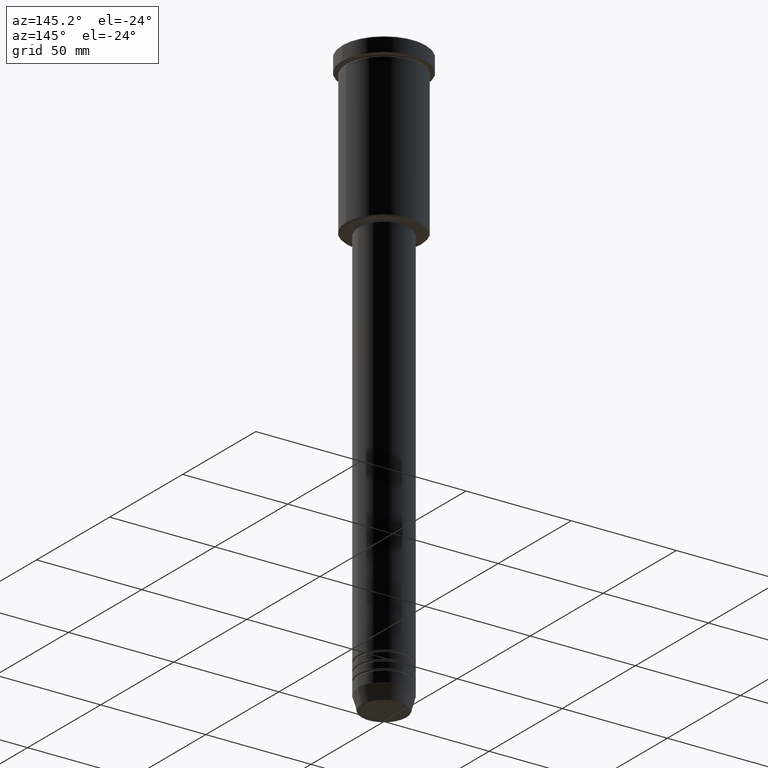
[diagram: clean part render]
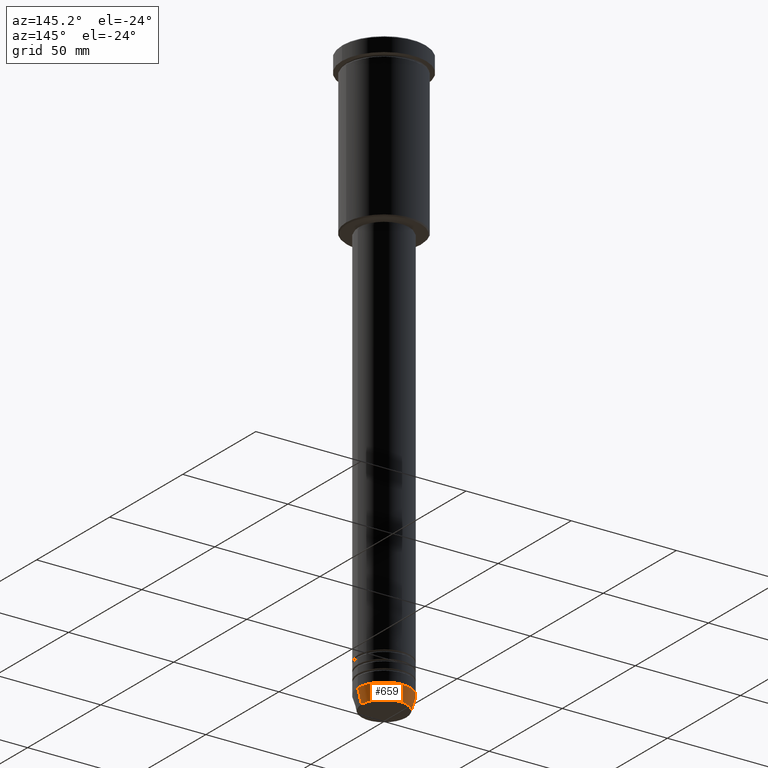
[diagram: same view with one face highlighted and labeled with its STEP entity id]
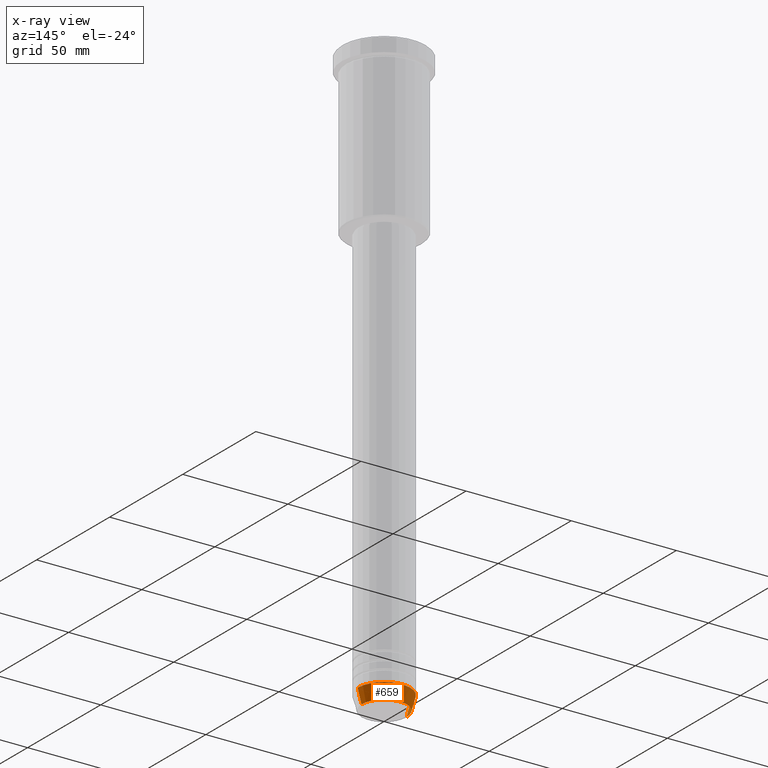
[diagram: x-ray of the same camera — body ghosted, the highlighted face saturated]
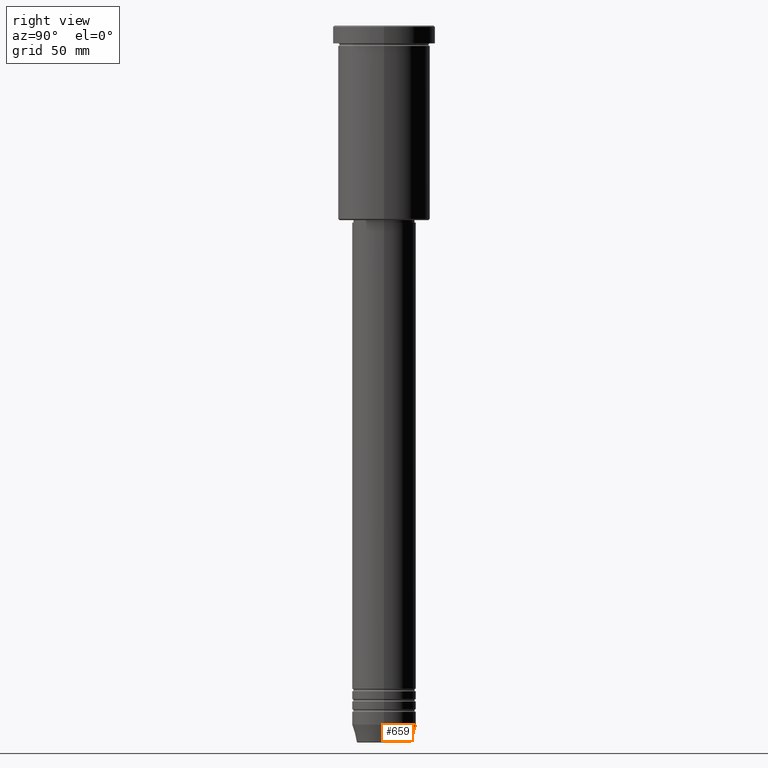
[diagram: same view with one face highlighted and labeled with its STEP entity id]
A machine part, auxiliary view. The second image highlights one B-rep face of the part: STEP entity #659.
The next image is the same camera in x-ray: the body ghosted, the highlighted face saturated — about 0% of this face is hidden behind the body in this view.
A second angle (right view) of the same face is appended — the face is thin or edge-on in the first view.
In plain terms, the highlighted conical surface has half-angle 15 deg.
Its self-contained STEP definition (entity closure, byte-faithful):
#26 = VECTOR ( 'NONE', #531, 1000.000000000000000 ) ;
#65 = ORIENTED_EDGE ( 'NONE', *, *, #915, .T. ) ;
#66 = CARTESIAN_POINT ( 'NONE',  ( -10.72365507213719127, 1.422038742429750516E-15, -279.6294095225512706 ) ) ;
#169 = CONICAL_SURFACE ( 'NONE', #220, 12.50000000000000000, 0.2617993877991500740 ) ;
#172 = CARTESIAN_POINT ( 'NONE',  ( 12.50000000000000000, 0.000000000000000000, -273.0000000000000000 ) ) ;
#206 = CIRCLE ( 'NONE', #1126, 12.50000000000000000 ) ;
#215 = DIRECTION ( 'NONE',  ( 1.000000000000000000, 0.000000000000000000, 0.000000000000000000 ) ) ;
#218 = AXIS2_PLACEMENT_3D ( 'NONE', #716, #777, #751 ) ;
#220 = AXIS2_PLACEMENT_3D ( 'NONE', #1141, #857, #215 ) ;
#237 = CIRCLE ( 'NONE', #218, 10.72365507213719127 ) ;
#290 = DIRECTION ( 'NONE',  ( -0.000000000000000000, -0.000000000000000000, 1.000000000000000000 ) ) ;
#357 = VERTEX_POINT ( 'NONE', #1172 ) ;
#358 = EDGE_CURVE ( 'NONE', #894, #372, #237, .T. ) ;
#369 = CARTESIAN_POINT ( 'NONE',  ( -12.50000000000000000, 1.530808498934191521E-15, -273.0000000000000000 ) ) ;
#372 = VERTEX_POINT ( 'NONE', #66 ) ;
#449 = ORIENTED_EDGE ( 'NONE', *, *, #859, .F. ) ;
#477 = ORIENTED_EDGE ( 'NONE', *, *, #1164, .F. ) ;
#531 = DIRECTION ( 'NONE',  ( 0.2588190451025213501, 0.000000000000000000, 0.9659258262890680902 ) ) ;
#575 = ORIENTED_EDGE ( 'NONE', *, *, #358, .T. ) ;
#589 = FACE_OUTER_BOUND ( 'NONE', #1162, .T. ) ;
#590 = VERTEX_POINT ( 'NONE', #917 ) ;
#659 = ADVANCED_FACE ( 'NONE', ( #589 ), #169, .T. ) ;
#716 = CARTESIAN_POINT ( 'NONE',  ( 0.000000000000000000, 0.000000000000000000, -279.6294095225512706 ) ) ;
#731 = LINE ( 'NONE', #369, #1147 ) ;
#751 = DIRECTION ( 'NONE',  ( 1.000000000000000000, 0.000000000000000000, 0.000000000000000000 ) ) ;
#777 = DIRECTION ( 'NONE',  ( -0.000000000000000000, -0.000000000000000000, 1.000000000000000000 ) ) ;
#813 = DIRECTION ( 'NONE',  ( -0.2588190451025213501, 3.169619151431772337E-17, 0.9659258262890680902 ) ) ;
#820 = DIRECTION ( 'NONE',  ( 1.000000000000000000, 0.000000000000000000, 0.000000000000000000 ) ) ;
#828 = CARTESIAN_POINT ( 'NONE',  ( 0.000000000000000000, 0.000000000000000000, -273.0000000000000000 ) ) ;
#857 = DIRECTION ( 'NONE',  ( -0.000000000000000000, -0.000000000000000000, 1.000000000000000000 ) ) ;
#859 = EDGE_CURVE ( 'NONE', #590, #357, #206, .T. ) ;
#894 = VERTEX_POINT ( 'NONE', #1111 ) ;
#915 = EDGE_CURVE ( 'NONE', #372, #357, #731, .T. ) ;
#917 = CARTESIAN_POINT ( 'NONE',  ( 12.50000000000000000, 0.000000000000000000, -273.0000000000000000 ) ) ;
#995 = LINE ( 'NONE', #172, #26 ) ;
#1111 = CARTESIAN_POINT ( 'NONE',  ( 10.72365507213719127, 0.000000000000000000, -279.6294095225512706 ) ) ;
#1126 = AXIS2_PLACEMENT_3D ( 'NONE', #828, #290, #820 ) ;
#1141 = CARTESIAN_POINT ( 'NONE',  ( 0.000000000000000000, 0.000000000000000000, -273.0000000000000000 ) ) ;
#1147 = VECTOR ( 'NONE', #813, 1000.000000000000000 ) ;
#1162 = EDGE_LOOP ( 'NONE', ( #575, #65, #449, #477 ) ) ;
#1164 = EDGE_CURVE ( 'NONE', #894, #590, #995, .T. ) ;
#1172 = CARTESIAN_POINT ( 'NONE',  ( -12.50000000000000000, 1.530808498934191521E-15, -273.0000000000000000 ) ) ;